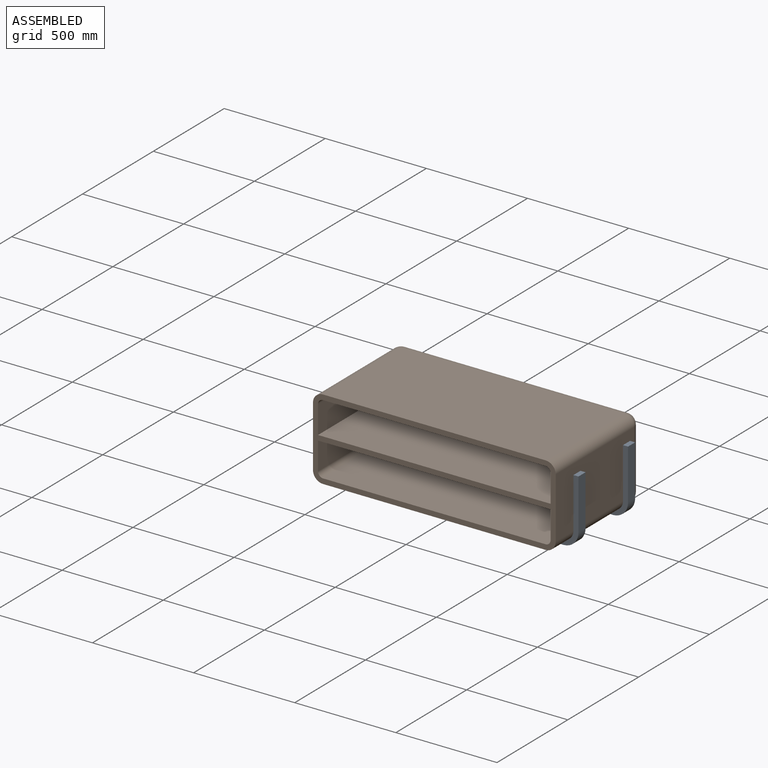
[diagram: assembled view]
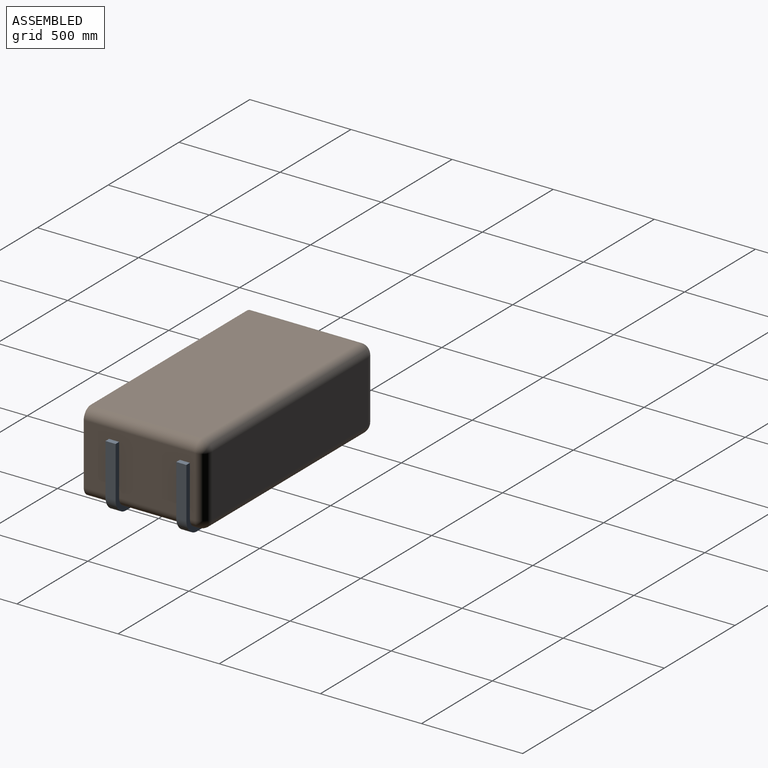
[diagram: assembled view, second angle]
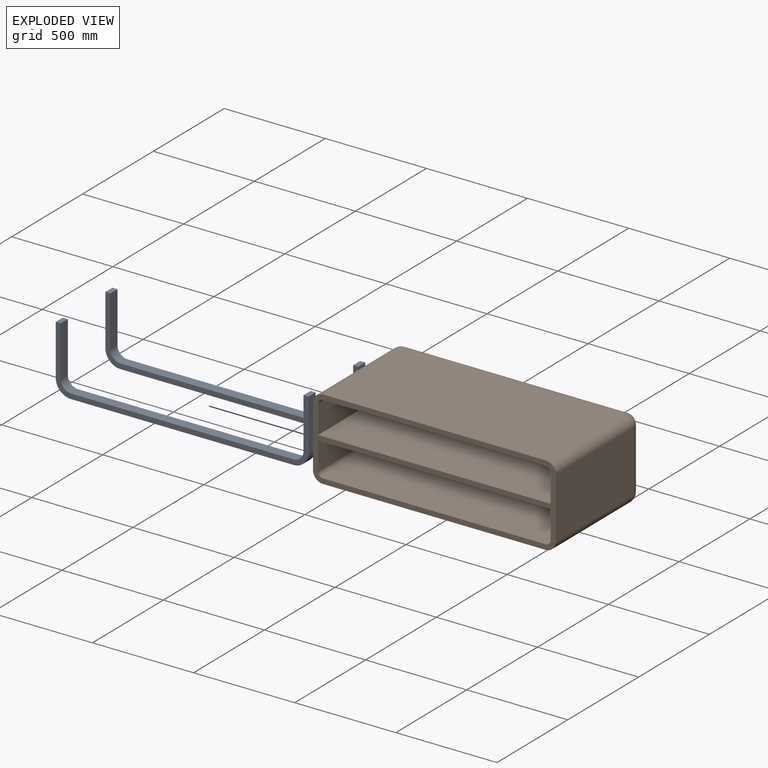
[diagram: exploded view]
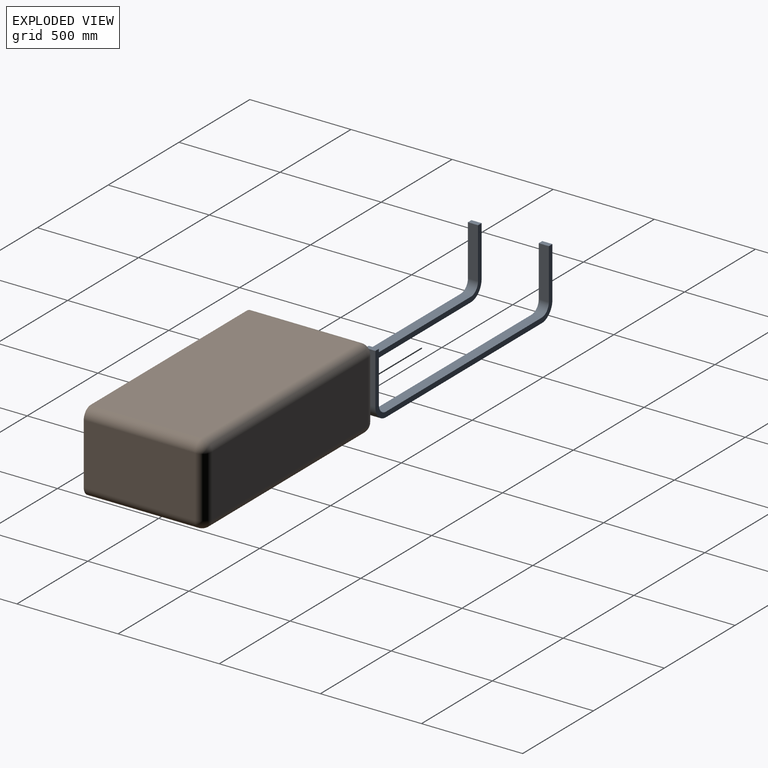
[diagram: exploded view, second angle]
FCSTD DOCUMENT  (FreeCAD 1.0R39109 (Git))
Label: furniture
License: All rights reserved
LicenseURL: https://en.wikipedia.org/wiki/All_rights_reserved
objects: App::Part×4, Sketcher::SketchObject×3, PartDesign::Pad×3, Part::FeaturePython×3, PartDesign::Body×2, Assembly::JointGroup×2, App::Link×2, Assembly::AssemblyObject×2, PartDesign::Fillet×1, PartDesign::Thickness×1, PartDesign::ShapeBinder×1, PartDesign::Plane×1
note: 27 computed .brp shape members not serialized (recipe doc carries the construction recipe); baked Part::Feature solids carry a one-line shape summary decoded from their .brp

FEATURE [Sketcher::SketchObject] Sketch
  ArcFitTolerance = 1e-06
  AttachmentSupport = -> [XY_Plane]
  FullyConstrained = true
  MakeInternals = false
  MapMode = 5
  sketch-geometry (4):
    g0: LineSegment StartX=-600 StartY=200 StartZ=0 EndX=-600 EndY=-200 EndZ=0
    g1: LineSegment StartX=-600 StartY=-200 StartZ=0 EndX=600 EndY=-200 EndZ=0
    g2: LineSegment StartX=600 StartY=-200 StartZ=0 EndX=600 EndY=200 EndZ=0
    g3: LineSegment StartX=600 StartY=200 StartZ=0 EndX=-600 EndY=200 EndZ=0
  constraints (11):
    c: Coincident(g0,g1)
    c: Coincident(g1,g2)
    c: Coincident(g2,g3)
    c: Coincident(g3,g0)
    c: Vertical(g0)
    c: Vertical(g2)
    c: Horizontal(g1)
    c: Horizontal(g3)
    c: Symmetric(g1,g0,g-1)
    c: DistanceX(g3,g3) = 1200
    c: DistanceY(g0,g0) = 400
FEATURE [PartDesign::Pad] Pad
  Direction = (0,0,1)
  Length = 600
  Length2 = 10
  Midplane = true
  Profile = -> Sketch
  ReferenceAxis = -> Sketch [N_Axis]
  Refine = true
  Suppressed = false
  Type = 0
FEATURE [PartDesign::Fillet] Fillet
  Base = -> Pad [Edge8,Edge5,Face5,Edge2,Edge1]
  BaseFeature = -> Pad
  Radius = 50
  Refine = true
  SupportTransform = false
  Suppressed = false
  UseAllEdges = false
FEATURE [PartDesign::Thickness] Thickness
  Base = -> Fillet [Face2]
  BaseFeature = -> Fillet
  Intersection = false
  Join = 0
  Mode = 0
  Refine = true
  Reversed = true
  SupportTransform = false
  Suppressed = false
  Value = 25
FEATURE [Sketcher::SketchObject] Sketch001
  ArcFitTolerance = 1e-06
  AttachmentSupport = -> [Thickness]
  ExternalGeometry = -> [Thickness]
  FullyConstrained = true
  MakeInternals = false
  MapMode = 5
  Placement = pos=(0,0,300) rot=(0,0,1;0rad)
  sketch-geometry (4):
    g0: LineSegment StartX=-575 StartY=12.5 StartZ=0 EndX=-575 EndY=-12.5 EndZ=0
    g1: LineSegment StartX=-575 StartY=-12.5 StartZ=0 EndX=575 EndY=-12.5 EndZ=0
    g2: LineSegment StartX=575 StartY=-12.5 StartZ=0 EndX=575 EndY=12.5 EndZ=0
    g3: LineSegment StartX=575 StartY=12.5 StartZ=0 EndX=-575 EndY=12.5 EndZ=0
  constraints (11):
    c: Coincident(g1,g2)
    c: Coincident(g2,g3)
    c: Coincident(g3,g0)
    c: Vertical(g0)
    c: Vertical(g2)
    c: Horizontal(g3)
    c: Coincident(g0,g1)
    c: PointOnObject(g0,g-4)
    c: Symmetric(g2,g0,g-1)
    c: Parallel(g1,g3)
    c: DistanceY(g0,g0) = 25
FEATURE [PartDesign::Pad] Pad001
  BaseFeature = -> Thickness
  Direction = (0,0,1)
  Length = 10
  Length2 = 10
  Profile = -> Sketch001
  ReferenceAxis = -> Sketch001 [N_Axis]
  Refine = true
  Suppressed = false
  Type = 3
  UpToFace = -> Thickness [Face28]
FEATURE [PartDesign::Body] Body
  AllowCompound = false
  Group = -> [Sketch,Pad,Fillet,Thickness,Sketch001,Pad001]
  Origin = -> Origin
  Tip = -> Pad001
FEATURE [PartDesign::ShapeBinder] CopyPad001
  TraceSupport = false
FEATURE [PartDesign::Plane] DatumPlane
  AttachmentSupport = -> [CopyPad001]
  Length = 1377.48
  MapMode = 5
  Placement = pos=(0,0,300) rot=(0,0,1;0rad)
  ResizeMode = 0
  Width = 452.475
FEATURE [Sketcher::SketchObject] Sketch002
  ArcFitTolerance = 1e-06
  AttachmentSupport = -> [CopyPad001]
  ExternalGeometry = -> [CopyPad001]
  FullyConstrained = true
  MakeInternals = false
  MapMode = 5
  Placement = pos=(0,0,300) rot=(0,0,1;0rad)
  sketch-geometry (12):
    g0: ArcOfCircle CenterX=-550 CenterY=-150 CenterZ=0 NormalX=0 NormalY=0 NormalZ=1 AngleXU=0 Radius=74.9999 StartAngle=3.14159 EndAngle=4.71239
    g1: ArcOfCircle CenterX=550 CenterY=-150 CenterZ=0 NormalX=0 NormalY=0 NormalZ=1 AngleXU=0 Radius=50 StartAngle=4.71239 EndAngle=6.28319
    g2: ArcOfCircle CenterX=550 CenterY=-150 CenterZ=0 NormalX=0 NormalY=0 NormalZ=1 AngleXU=0 Radius=75 StartAngle=4.71239 EndAngle=6.28318
    g3: ArcOfCircle CenterX=-550 CenterY=-150 CenterZ=0 NormalX=0 NormalY=0 NormalZ=1 AngleXU=0 Radius=49.9999 StartAngle=3.14159 EndAngle=4.71239
    g4: LineSegment StartX=-550 StartY=-225 StartZ=0 EndX=550 EndY=-225 EndZ=0
    g5: LineSegment StartX=-625 StartY=-150 StartZ=0 EndX=-625 EndY=100 EndZ=0
    g6: LineSegment StartX=-625 StartY=100 StartZ=0 EndX=-600 EndY=100 EndZ=0
    g7: LineSegment StartX=-600 StartY=100 StartZ=0 EndX=-600 EndY=-150 EndZ=0
    g8: LineSegment StartX=625 StartY=-150 StartZ=0 EndX=625 EndY=100 EndZ=0
    g9: LineSegment StartX=625 StartY=100 StartZ=0 EndX=600 EndY=100 EndZ=0
    g10: LineSegment StartX=600 StartY=100 StartZ=0 EndX=600 EndY=-150 EndZ=0
    g11: LineSegment StartX=-550 StartY=-200 StartZ=0 EndX=550 EndY=-200 EndZ=0
  constraints (31):
    c: Coincident(g1,g-4)
    c: Coincident(g2,g1)
    c: Coincident(g3,g0)
    c: Coincident(g3,g-6)
    c: Coincident(g4,g0)
    c: Horizontal(g4)
    c: Vertical(g5)
    c: PointOnObject(g6,g-6)
    c: Horizontal(g6)
    c: Coincident(g7,g6)
    c: Coincident(g7,g3)
    c: Coincident(g8,g2)
    c: Vertical(g8)
    c: Coincident(g9,g8)
    c: PointOnObject(g9,g-3)
    c: Horizontal(g9)
    c: Coincident(g10,g9)
    c: Coincident(g1,g-4)
    c: Coincident(g11,g1)
    c: Horizontal(g11)
    c: DistanceX(g6,g6) = 25
    c: Coincident(g5,g6)
    c: Equal(g9,g6)
    c: DistanceY(g6,g-6) = 50
    c: Equal(g5,g8)
    c: Tangent(g0,g4,g0) = -1.5708
    c: Tangent(g4,g2) = -1.5708
    c: Tangent(g10,g1) = 1.5708
    c: DistanceY(g9,g-3) = 50
    c: Tangent(g5,g0) = 1.5708
    c: Tangent(g11,g3) = -1.5708
FEATURE [PartDesign::Pad] Pad002
  Direction = (0,0,1)
  Length = 50
  Length2 = 10
  Midplane = true
  Profile = -> Sketch002
  ReferenceAxis = -> Sketch002 [N_Axis]
  Refine = true
  Suppressed = false
  Type = 0
FEATURE [PartDesign::Body] Body001
  AllowCompound = false
  Group = -> [DatumPlane,CopyPad001,Sketch002,Pad002]
  Origin = -> Origin001
  Placement = pos=(0,0,-150) rot=(0,0,1;0rad)
  Tip = -> Pad002
FEATURE [Part::FeaturePython] Array  # Draft array (typed FeaturePython)
  AlwaysSyncPlacement = false
  Angle = 360
  ArrayType = 0
  Axis = (0,0,1)
  Base = -> Body001
  Center = (0,0,0)
  Count = 2
  ExpandArray = false
  Fuse = false
  IntervalAxis = (0,0,0)
  IntervalX = (100,0,0)
  IntervalY = (0,100,0)
  IntervalZ = (0,0,-350)
  NumberCircles = 3
  NumberPolar = 5
  NumberX = 1
  NumberY = 1
  NumberZ = 2
  PlacementList = 2 placements: [(0,0,-150),(0,0,-500)]
  RadialDistance = 50
  ScaleList = (2) [(1,1,1),(1,1,1)]
  Symmetry = 1
  TangentialDistance = 25
FEATURE [App::Part] Part  label="furniture1"
  Group = -> [Body,Array]
  Origin = -> Origin002
  Placement = pos=(0,0,0) rot=(1,0,0;1.5708rad)
FEATURE [App::Part] Part001  label="furniture2"
  Group = -> [Part]
  Origin = -> Origin003
  Placement = pos=(0,0,225) rot=(0,0,1;0rad)
FEATURE [App::Part] Part002  label="furniture3"
  Group = -> [Part001]
  Origin = -> Origin004
  Placement = pos=(0,0,225) rot=(0,0,1;0rad)
FEATURE [Assembly::JointGroup] Joints
FEATURE [Assembly::JointGroup] Joints001
FEATURE [App::Link] Body002
  LinkPlacement = pos=(0,0,225) rot=(1,0,0;1.5708rad)
  LinkedObject = -> Body
  Placement = pos=(0,0,225) rot=(1,0,0;1.5708rad)
FEATURE [Assembly::AssemblyObject] Assembly  label="body_a"
  Group = -> [Joints,Body002]
  Origin = -> Origin005
  Placement = pos=(0,0,225) rot=(0,0,1;0rad)
  Type = Assembly
FEATURE [App::Link] Array001
  LinkPlacement = pos=(0,0,225) rot=(1,0,0;1.5708rad)
  LinkedObject = -> Array
  Placement = pos=(0,0,225) rot=(1,0,0;1.5708rad)
FEATURE [Assembly::AssemblyObject] Assembly001  label="stand_a"
  Group = -> [Joints001,Array001]
  Origin = -> Origin006
  Placement = pos=(0,0,225) rot=(0,0,1;0rad)
  Type = Assembly
FEATURE [Part::FeaturePython] Clone  label="body_clone"  # Draft clone (typed FeaturePython)
  AttacherType = Attacher::AttachEngine3D
  Fuse = false
  Objects = -> [Assembly]
  Scale = (1,1,1)
FEATURE [Part::FeaturePython] Clone001  label="stand_clone"  # Draft clone (typed FeaturePython)
  AttacherType = Attacher::AttachEngine3D
  Fuse = false
  Objects = -> [Assembly001]
  Scale = (1,1,1)
FEATURE [App::Part] Part003  label="furniture"
  Group = -> [Clone,Clone001]
  Origin = -> Origin007
